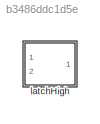
MODEL slx_b3486ddc1d5e
KIND library
CONFIG AbsTol = auto
CONFIG EnableMultiTasking = off
CONFIG FixedStep = auto
CONFIG MaxStep = auto
CONFIG MinStep = auto
CONFIG RelTol = 1e-3
CONFIG SampleTimeConstraint = Unconstrained
CONFIG Solver = VariableStepAuto
CONFIG SolverName = VariableStepAuto
CONFIG StartTime = 0.0
CONFIG StopTime = 10.0
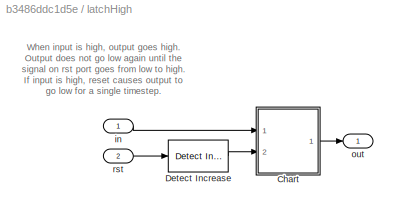
BLOCK [SubSystem] latchHigh
  Ports = [2, 1]
  RequestExecContextInheritance = off
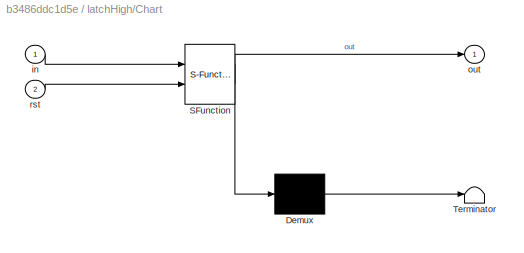
BLOCK [SubSystem] latchHigh/Chart
  ErrorFcn = Stateflow.Translate.translate
  PermitHierarchicalResolution = ExplicitOnly
  Ports = [2, 1]
  RequestExecContextInheritance = off
  SFBlockType = Chart
  TreatAsAtomicUnit = on
BLOCK [Demux] latchHigh/Chart/ Demux 
  Outputs = 1
  Ports = [1, 1]
BLOCK [S-Function] latchHigh/Chart/ SFunction 
  EnableBusSupport = off
  FunctionName = sf_sfun
  PortCounts = [2 2]
  Ports = [2, 2]
  SFcnIsStateOwnerBlock = off
  SFunctionDeploymentMode = off
  Tag = Stateflow S-Function latchHigh_ul 3
BLOCK [Terminator] latchHigh/Chart/ Terminator 
BLOCK [Inport] latchHigh/Chart/in
  IconDisplay = Port number
BLOCK [Outport] latchHigh/Chart/out
  IconDisplay = Port number
BLOCK [Inport] latchHigh/Chart/rst
  IconDisplay = Port number
  Port = 2
BLOCK [Reference] latchHigh/Detect Increase  REF=simulink/Logic and Bit
Operations/Detect
Increase
  Ports = [1, 1]
  SourceBlock = simulink/Logic and Bit\nOperations/Detect\nIncrease
  SourceProductBaseCode = SL
  SourceProductName = Simulink
  SourceType = Detect Increase
BLOCK [Inport] latchHigh/in
  IconDisplay = Port number
  OutDataTypeStr = boolean
  PortDimensions = 1
BLOCK [Outport] latchHigh/out
  IconDisplay = Port number
  OutDataTypeStr = boolean
  PortDimensions = 1
BLOCK [Inport] latchHigh/rst
  IconDisplay = Port number
  OutDataTypeStr = boolean
  Port = 2
  PortDimensions = 1
ANNOTATION latchHigh: When input is high, output goes high. Output does not go low again until the signal on rst port goes from low to high. If input is high, reset causes output to go low for a single timestep.
LINE latchHigh/Chart:1 -> latchHigh/out:1
LINE latchHigh/Detect Increase:1 -> latchHigh/Chart:2
LINE latchHigh/in:1 -> latchHigh/Chart:1
LINE latchHigh/rst:1 -> latchHigh/Detect Increase:1
CHART latchHigh/Chart states=2 transitions=3
  STATE_LABEL 'OFF\nout = false;'
  STATE_LABEL 'ON\nout = true;'
